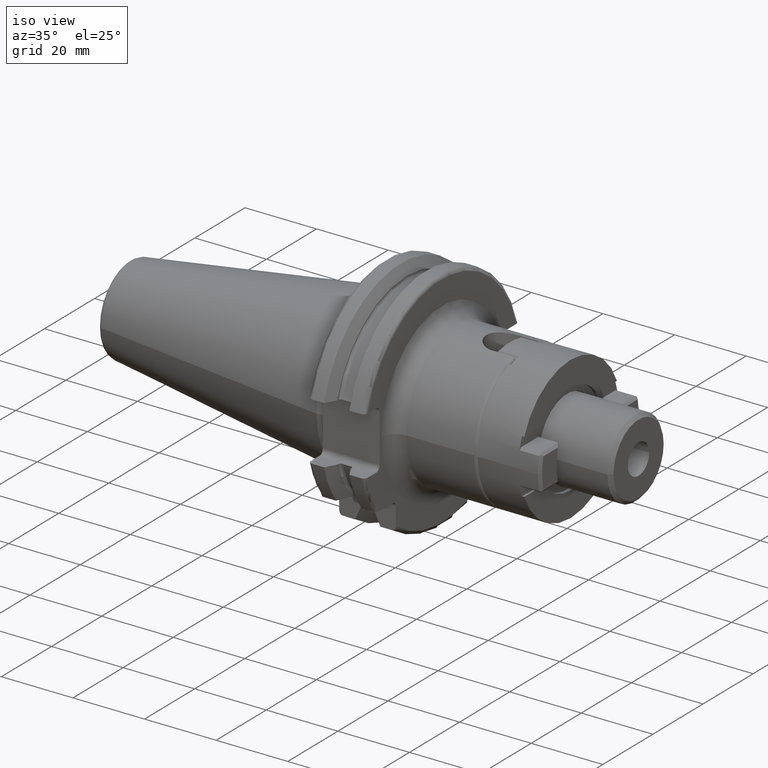
[diagram: clean part render]
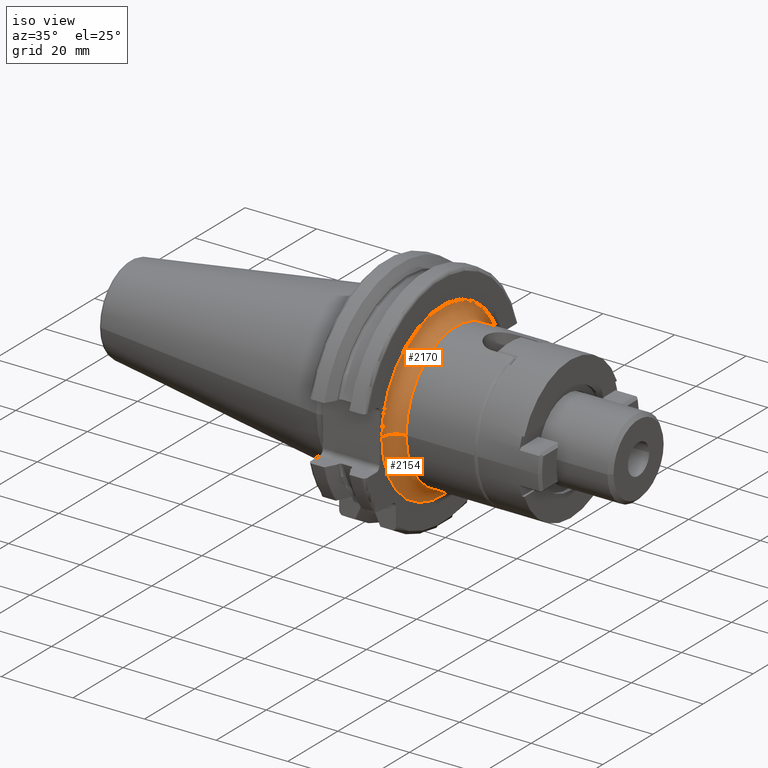
[diagram: same view with one multi-face feature highlighted, each face labeled with its STEP entity id]
A machine part, iso view. The highlighted faces form ONE feature: a constant-radius fillet chain: 2 tangent blend faces with common blend radius 4 mm. The faces share edges in the B-rep.
Their STEP definitions:
[1] entity #2154 (Torus):
#140=CARTESIAN_POINT('',(1.905E1,0.E0,0.E0));
#141=DIRECTION('',(1.E0,0.E0,0.E0));
#142=DIRECTION('',(0.E0,-1.E0,0.E0));
#143=AXIS2_PLACEMENT_3D('',#140,#141,#142);
#178=CARTESIAN_POINT('',(2.305E1,-2.4E1,8.398559625533E-13));
#179=DIRECTION('',(0.E0,-3.499284195740E-14,-1.E0));
#180=DIRECTION('',(-1.E0,2.664535259100E-14,0.E0));
#181=AXIS2_PLACEMENT_3D('',#178,#179,#180);
#183=CARTESIAN_POINT('',(1.907670206059E1,2.255E1,-6.75E0));
#184=CARTESIAN_POINT('',(1.909497046345E1,2.255E1,-6.201423861870E0));
#185=CARTESIAN_POINT('',(1.914682953846E1,2.255E1,-5.089239409601E0));
#186=CARTESIAN_POINT('',(1.923730893294E1,2.255E1,-3.384663858367E0));
#187=CARTESIAN_POINT('',(1.930764191280E1,2.255E1,-1.612532318435E0));
#188=CARTESIAN_POINT('',(1.932207447826E1,2.255E1,-5.284939727342E-1));
#189=CARTESIAN_POINT('',(1.932206490525E1,2.255E1,1.048080700763E-3));
#191=CARTESIAN_POINT('',(1.905E1,2.279133913700E1,-7.520204854381E0));
#192=CARTESIAN_POINT('',(1.905E1,2.273929408310E1,-7.445298702593E0));
#193=CARTESIAN_POINT('',(1.905400016895E1,2.265033703454E1,-7.285148051629E0));
#194=CARTESIAN_POINT('',(1.906604740531E1,2.256780921448E1,-7.020120364903E0));
#195=CARTESIAN_POINT('',(1.907371374390E1,2.255E1,-6.839735224473E0));
#196=CARTESIAN_POINT('',(1.907670206059E1,2.255E1,-6.75E0));
#205=CARTESIAN_POINT('',(1.932206490525E1,2.255E1,1.048080700763E-3));
#213=CARTESIAN_POINT('',(2.305E1,2.399999997408E1,1.115473915360E-3));
#214=DIRECTION('',(0.E0,-4.647807980669E-5,9.999999989199E-1));
#215=DIRECTION('',(-9.319837736863E-1,-3.624999935194E-1,-1.684830364691E-5));
#216=AXIS2_PLACEMENT_3D('',#213,#214,#215);
#1366=CARTESIAN_POINT('',(2.305E1,0.E0,0.E0));
#1367=DIRECTION('',(1.E0,0.E0,0.E0));
#1368=DIRECTION('',(0.E0,-1.E0,0.E0));
#1369=AXIS2_PLACEMENT_3D('',#1366,#1367,#1368);
#1820=CARTESIAN_POINT('',(1.905E1,-2.4E1,0.E0));
#1821=CARTESIAN_POINT('',(1.905E1,2.279135268669E1,-7.520255495061E0));
#1822=VERTEX_POINT('',#1820);
#1823=VERTEX_POINT('',#1821);
#1824=CARTESIAN_POINT('',(2.305E1,-2.E1,0.E0));
#1825=CARTESIAN_POINT('',(2.305E1,2.E1,0.E0));
#1826=VERTEX_POINT('',#1824);
#1827=VERTEX_POINT('',#1825);
#1838=VERTEX_POINT('',#205);
#1840=VERTEX_POINT('',#183);
#2138=CARTESIAN_POINT('',(2.305E1,0.E0,0.E0));
#2139=DIRECTION('',(1.E0,0.E0,0.E0));
#2140=DIRECTION('',(0.E0,-9.999704443983E-1,7.688324254755E-3));
#2141=AXIS2_PLACEMENT_3D('',#2138,#2139,#2140);
#2142=TOROIDAL_SURFACE('',#2141,2.4E1,4.E0);
#2143=ORIENTED_EDGE('',*,*,#2102,.F.);
#2145=ORIENTED_EDGE('',*,*,#2144,.T.);
#2147=ORIENTED_EDGE('',*,*,#2146,.T.);
#2149=ORIENTED_EDGE('',*,*,#2148,.F.);
#2150=ORIENTED_EDGE('',*,*,#2064,.F.);
#2151=ORIENTED_EDGE('',*,*,#2087,.F.);
#2152=EDGE_LOOP('',(#2143,#2145,#2147,#2149,#2150,#2151));
#2153=FACE_OUTER_BOUND('',#2152,.F.);
#2154=ADVANCED_FACE('',(#2153),#2142,.F.);
#144=CIRCLE('',#143,2.4E1);
#182=CIRCLE('',#181,4.E0);
#190=B_SPLINE_CURVE_WITH_KNOTS('',3,(#183,#184,#185,#186,#187,#188,#189),
.UNSPECIFIED.,.F.,.F.,(4,1,1,1,4),(0.E0,2.5E-1,5.E-1,7.5E-1,1.E0),
.UNSPECIFIED.);
#197=B_SPLINE_CURVE_WITH_KNOTS('',3,(#191,#192,#193,#194,#195,#196),
.UNSPECIFIED.,.F.,.F.,(4,1,1,4),(0.E0,3.333333333333E-1,6.666666666667E-1,1.E0),
.UNSPECIFIED.);
#217=CIRCLE('',#216,4.E0);
#1370=CIRCLE('',#1369,2.E1);
#2064=EDGE_CURVE('',#1840,#1838,#190,.T.);
#2087=EDGE_CURVE('',#1823,#1840,#197,.T.);
#2102=EDGE_CURVE('',#1822,#1823,#144,.T.);
#2144=EDGE_CURVE('',#1822,#1826,#182,.T.);
#2146=EDGE_CURVE('',#1826,#1827,#1370,.T.);
#2148=EDGE_CURVE('',#1838,#1827,#217,.T.);
[2] entity #2170 (Torus):
#173=CARTESIAN_POINT('',(1.905E1,0.E0,0.E0));
#174=DIRECTION('',(1.E0,0.E0,0.E0));
#175=DIRECTION('',(0.E0,9.496391533445E-1,3.133456213755E-1));
#176=AXIS2_PLACEMENT_3D('',#173,#174,#175);
#178=CARTESIAN_POINT('',(2.305E1,-2.4E1,8.398559625533E-13));
#179=DIRECTION('',(0.E0,-3.499284195740E-14,-1.E0));
#180=DIRECTION('',(-1.E0,2.664535259100E-14,0.E0));
#181=AXIS2_PLACEMENT_3D('',#178,#179,#180);
#198=CARTESIAN_POINT('',(1.907670206059E1,2.255E1,6.75E0));
#199=CARTESIAN_POINT('',(1.907370954645E1,2.255E1,6.839861268424E0));
#200=CARTESIAN_POINT('',(1.906603385370E1,2.256787102613E1,7.020412723568E0));
#201=CARTESIAN_POINT('',(1.905399760608E1,2.265038109025E1,7.285214851645E0));
#202=CARTESIAN_POINT('',(1.905E1,2.273932993240E1,7.445368266003E0));
#203=CARTESIAN_POINT('',(1.905E1,2.279135219358E1,7.520241613231E0));
#205=CARTESIAN_POINT('',(1.932206490525E1,2.255E1,1.048080700763E-3));
#206=CARTESIAN_POINT('',(1.932205533193E1,2.255E1,5.306076350334E-1));
#207=CARTESIAN_POINT('',(1.930757798971E1,2.255E1,1.614525055668E0));
#208=CARTESIAN_POINT('',(1.923727148698E1,2.255E1,3.385312281569E0));
#209=CARTESIAN_POINT('',(1.914681945046E1,2.255E1,5.089466651864E0));
#210=CARTESIAN_POINT('',(1.909496939470E1,2.255E1,6.201455954984E0));
#211=CARTESIAN_POINT('',(1.907670206059E1,2.255E1,6.75E0));
#213=CARTESIAN_POINT('',(2.305E1,2.399999997408E1,1.115473915360E-3));
#214=DIRECTION('',(0.E0,-4.647807980669E-5,9.999999989199E-1));
#215=DIRECTION('',(-9.319837736863E-1,-3.624999935194E-1,-1.684830364691E-5));
#216=AXIS2_PLACEMENT_3D('',#213,#214,#215);
#1020=CARTESIAN_POINT('',(2.305E1,0.E0,0.E0));
#1021=DIRECTION('',(1.E0,0.E0,0.E0));
#1022=DIRECTION('',(0.E0,1.E0,0.E0));
#1023=AXIS2_PLACEMENT_3D('',#1020,#1021,#1022);
#1820=CARTESIAN_POINT('',(1.905E1,-2.4E1,0.E0));
#1822=VERTEX_POINT('',#1820);
#1824=CARTESIAN_POINT('',(2.305E1,-2.E1,0.E0));
#1825=CARTESIAN_POINT('',(2.305E1,2.E1,0.E0));
#1826=VERTEX_POINT('',#1824);
#1827=VERTEX_POINT('',#1825);
#1828=CARTESIAN_POINT('',(1.905E1,2.279133968027E1,7.520294913012E0));
#1829=VERTEX_POINT('',#1828);
#1838=VERTEX_POINT('',#205);
#1839=VERTEX_POINT('',#211);
#2155=CARTESIAN_POINT('',(2.305E1,0.E0,0.E0));
#2156=DIRECTION('',(1.E0,0.E0,0.E0));
#2157=DIRECTION('',(0.E0,1.485959642860E-3,-9.999988959614E-1));
#2158=AXIS2_PLACEMENT_3D('',#2155,#2156,#2157);
#2159=TOROIDAL_SURFACE('',#2158,2.4E1,4.E0);
#2160=ORIENTED_EDGE('',*,*,#2133,.F.);
#2162=ORIENTED_EDGE('',*,*,#2161,.F.);
#2163=ORIENTED_EDGE('',*,*,#2066,.F.);
#2164=ORIENTED_EDGE('',*,*,#2148,.T.);
#2166=ORIENTED_EDGE('',*,*,#2165,.T.);
#2167=ORIENTED_EDGE('',*,*,#2144,.F.);
#2168=EDGE_LOOP('',(#2160,#2162,#2163,#2164,#2166,#2167));
#2169=FACE_OUTER_BOUND('',#2168,.F.);
#2170=ADVANCED_FACE('',(#2169),#2159,.F.);
#177=CIRCLE('',#176,2.4E1);
#182=CIRCLE('',#181,4.E0);
#204=B_SPLINE_CURVE_WITH_KNOTS('',3,(#198,#199,#200,#201,#202,#203),
.UNSPECIFIED.,.F.,.F.,(4,1,1,4),(0.E0,3.333333333333E-1,6.666666666667E-1,1.E0),
.UNSPECIFIED.);
#212=B_SPLINE_CURVE_WITH_KNOTS('',3,(#205,#206,#207,#208,#209,#210,#211),
.UNSPECIFIED.,.F.,.F.,(4,1,1,1,4),(0.E0,2.5E-1,5.E-1,7.5E-1,1.E0),
.UNSPECIFIED.);
#217=CIRCLE('',#216,4.E0);
#1024=CIRCLE('',#1023,2.E1);
#2066=EDGE_CURVE('',#1838,#1839,#212,.T.);
#2133=EDGE_CURVE('',#1829,#1822,#177,.T.);
#2144=EDGE_CURVE('',#1822,#1826,#182,.T.);
#2148=EDGE_CURVE('',#1838,#1827,#217,.T.);
#2161=EDGE_CURVE('',#1839,#1829,#204,.T.);
#2165=EDGE_CURVE('',#1827,#1826,#1024,.T.);